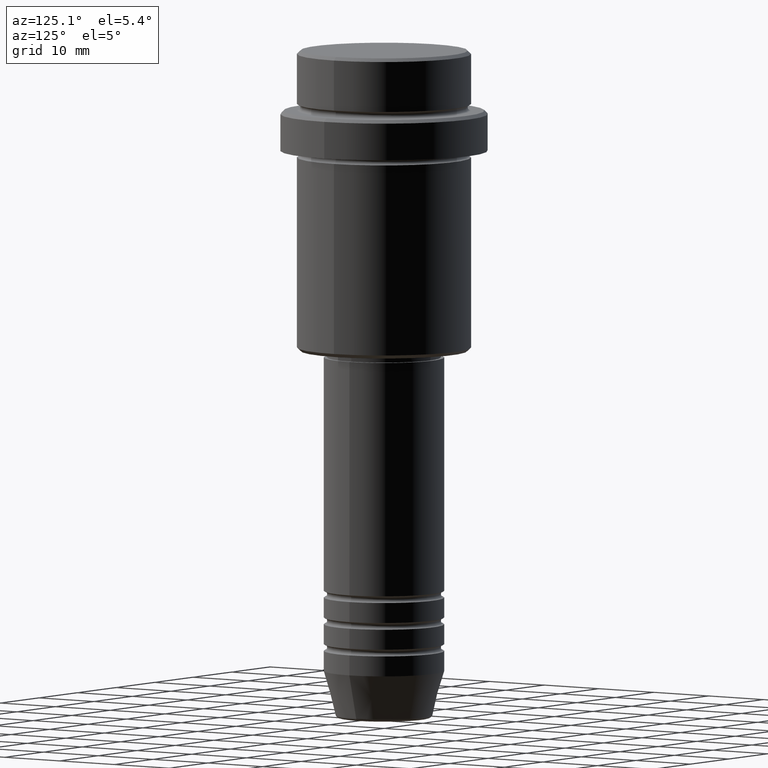
[diagram: clean part render]
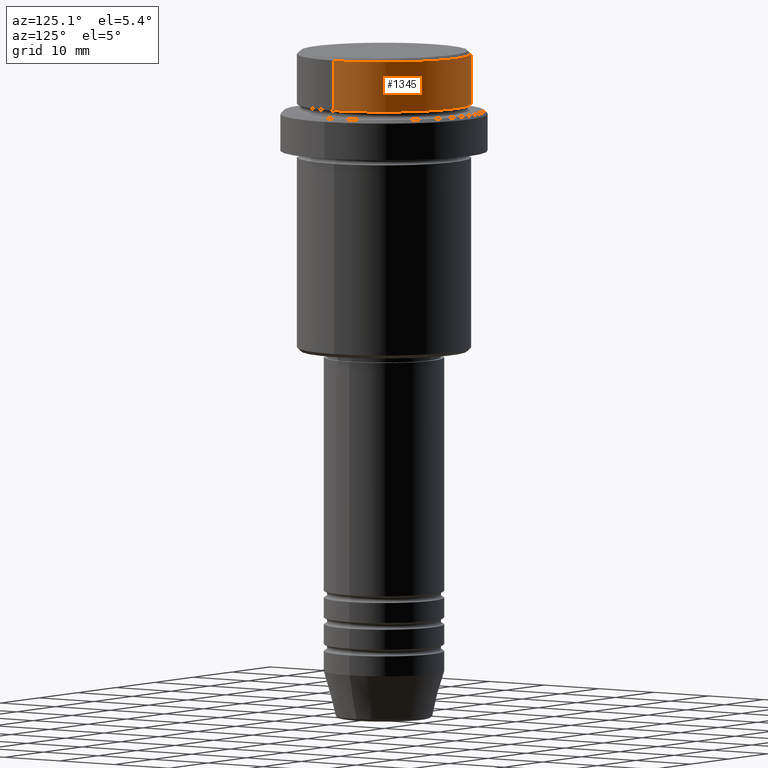
[diagram: same view with one face highlighted and labeled with its STEP entity id]
A machine part, auxiliary view. The second image highlights one B-rep face of the part: STEP entity #1345.
In plain terms, the highlighted cylindrical surface (partial cylindrical patch) has radius 13 mm, axis along (-0, -0, 1).
Its self-contained STEP definition (entity closure, byte-faithful):
#107 = AXIS2_PLACEMENT_3D ( 'NONE', #1300, #1173, #962 ) ;
#128 = CARTESIAN_POINT ( 'NONE',  ( 12.99999999999999822, 0.000000000000000000, -0.5000000000000177636 ) ) ;
#135 = ORIENTED_EDGE ( 'NONE', *, *, #786, .T. ) ;
#234 = ORIENTED_EDGE ( 'NONE', *, *, #743, .T. ) ;
#256 = CARTESIAN_POINT ( 'NONE',  ( 12.99999999999999822, 0.000000000000000000, 0.000000000000000000 ) ) ;
#271 = DIRECTION ( 'NONE',  ( -0.000000000000000000, -0.000000000000000000, 1.000000000000000000 ) ) ;
#272 = DIRECTION ( 'NONE',  ( -0.000000000000000000, -0.000000000000000000, 1.000000000000000000 ) ) ;
#299 = ORIENTED_EDGE ( 'NONE', *, *, #1178, .T. ) ;
#300 = VERTEX_POINT ( 'NONE', #675 ) ;
#378 = ORIENTED_EDGE ( 'NONE', *, *, #1413, .F. ) ;
#422 = DIRECTION ( 'NONE',  ( -0.000000000000000000, -0.000000000000000000, 1.000000000000000000 ) ) ;
#440 = VERTEX_POINT ( 'NONE', #1076 ) ;
#455 = VECTOR ( 'NONE', #630, 1000.000000000000000 ) ;
#488 = LINE ( 'NONE', #256, #1235 ) ;
#498 = CIRCLE ( 'NONE', #1023, 12.99999999999999822 ) ;
#503 = FACE_OUTER_BOUND ( 'NONE', #1273, .T. ) ;
#511 = LINE ( 'NONE', #1382, #455 ) ;
#533 = DIRECTION ( 'NONE',  ( 1.000000000000000000, 0.000000000000000000, 0.000000000000000000 ) ) ;
#578 = VERTEX_POINT ( 'NONE', #128 ) ;
#581 = CARTESIAN_POINT ( 'NONE',  ( 0.000000000000000000, 0.000000000000000000, -7.999999999999998224 ) ) ;
#599 = VERTEX_POINT ( 'NONE', #1243 ) ;
#630 = DIRECTION ( 'NONE',  ( -0.000000000000000000, -0.000000000000000000, 1.000000000000000000 ) ) ;
#675 = CARTESIAN_POINT ( 'NONE',  ( 12.99999999999999822, 0.000000000000000000, -7.999999999999998224 ) ) ;
#726 = CYLINDRICAL_SURFACE ( 'NONE', #1280, 12.99999999999999822 ) ;
#743 = EDGE_CURVE ( 'NONE', #599, #578, #1137, .T. ) ;
#786 = EDGE_CURVE ( 'NONE', #440, #599, #511, .T. ) ;
#962 = DIRECTION ( 'NONE',  ( 1.000000000000000000, 0.000000000000000000, 0.000000000000000000 ) ) ;
#1012 = DIRECTION ( 'NONE',  ( 1.000000000000000000, 0.000000000000000000, 0.000000000000000000 ) ) ;
#1023 = AXIS2_PLACEMENT_3D ( 'NONE', #581, #271, #1012 ) ;
#1076 = CARTESIAN_POINT ( 'NONE',  ( -12.99999999999999822, 1.592040838891558898E-15, -7.999999999999998224 ) ) ;
#1137 = CIRCLE ( 'NONE', #107, 12.99999999999999822 ) ;
#1173 = DIRECTION ( 'NONE',  ( 0.000000000000000000, 0.000000000000000000, -1.000000000000000000 ) ) ;
#1178 = EDGE_CURVE ( 'NONE', #300, #440, #498, .T. ) ;
#1235 = VECTOR ( 'NONE', #272, 1000.000000000000000 ) ;
#1243 = CARTESIAN_POINT ( 'NONE',  ( -12.99999999999999822, 1.592040838891558898E-15, -0.5000000000000177636 ) ) ;
#1273 = EDGE_LOOP ( 'NONE', ( #299, #135, #234, #378 ) ) ;
#1280 = AXIS2_PLACEMENT_3D ( 'NONE', #1402, #422, #533 ) ;
#1300 = CARTESIAN_POINT ( 'NONE',  ( 0.000000000000000000, 0.000000000000000000, -0.5000000000000177636 ) ) ;
#1345 = ADVANCED_FACE ( 'NONE', ( #503 ), #726, .T. ) ;
#1382 = CARTESIAN_POINT ( 'NONE',  ( -12.99999999999999822, 1.592040838891558898E-15, 0.000000000000000000 ) ) ;
#1402 = CARTESIAN_POINT ( 'NONE',  ( 0.000000000000000000, 0.000000000000000000, 0.000000000000000000 ) ) ;
#1413 = EDGE_CURVE ( 'NONE', #300, #578, #488, .T. ) ;